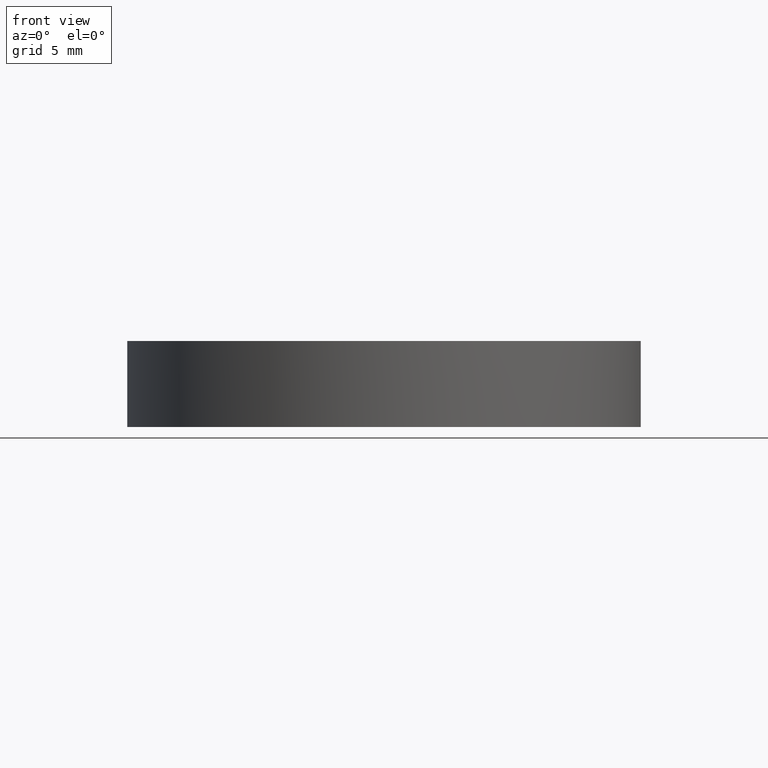
[diagram: clean part render]
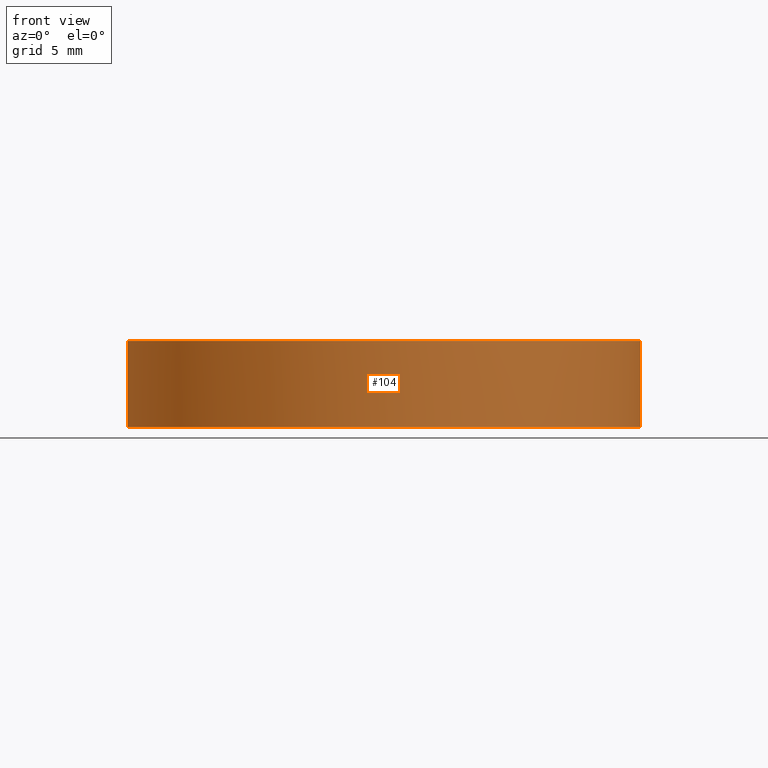
[diagram: same view with one face highlighted and labeled with its STEP entity id]
A machine part, front view. The second image highlights one B-rep face of the part: STEP entity #104.
In plain terms, the highlighted cylindrical surface (partial cylindrical patch) has radius 19.05 mm, axis along (-0, -0, 1).
Its self-contained STEP definition (entity closure, byte-faithful):
#3 = CARTESIAN_POINT ( 'NONE',  ( -4.811603628528664400E-015, -8.881784197001250400E-016, 2.399999999999999500 ) ) ;
#9 = CARTESIAN_POINT ( 'NONE',  ( -4.662936703425659800E-015, -8.881784197001250400E-016, -3.977333338426360900 ) ) ;
#11 = DIRECTION ( 'NONE',  ( -2.331176954593499900E-017, -1.086877198725570000E-033, 1.000000000000000000 ) ) ;
#28 = VERTEX_POINT ( 'NONE', #224 ) ;
#32 = EDGE_CURVE ( 'NONE', #137, #28, #182, .T. ) ;
#33 = AXIS2_PLACEMENT_3D ( 'NONE', #3, #222, #122 ) ;
#40 = DIRECTION ( 'NONE',  ( -2.331176954593499900E-017, -1.086877198725570000E-033, 1.000000000000000000 ) ) ;
#44 = DIRECTION ( 'NONE',  ( 1.000000000000000000, 0.0000000000000000000, 4.553079989440438700E-017 ) ) ;
#51 = AXIS2_PLACEMENT_3D ( 'NONE', #188, #148, #44 ) ;
#54 = CARTESIAN_POINT ( 'NONE',  ( 6.352151363294733000E-015, -19.05000000000000400, -3.977333338426361800 ) ) ;
#55 = EDGE_CURVE ( 'NONE', #180, #127, #140, .T. ) ;
#65 = AXIS2_PLACEMENT_3D ( 'NONE', #210, #95, #134 ) ;
#66 = EDGE_CURVE ( 'NONE', #28, #127, #230, .T. ) ;
#68 = DIRECTION ( 'NONE',  ( -2.331176954593499900E-017, -1.086877198725570000E-033, 1.000000000000000000 ) ) ;
#74 = ORIENTED_EDGE ( 'NONE', *, *, #32, .T. ) ;
#78 = CYLINDRICAL_SURFACE ( 'NONE', #51, 19.05000000000000100 ) ;
#80 = VERTEX_POINT ( 'NONE', #54 ) ;
#84 = ORIENTED_EDGE ( 'NONE', *, *, #66, .T. ) ;
#90 = VECTOR ( 'NONE', #68, 1000.000000000000000 ) ;
#95 = DIRECTION ( 'NONE',  ( -2.331176954593499900E-017, -1.086877198725570000E-033, 1.000000000000000000 ) ) ;
#104 = ADVANCED_FACE ( 'NONE', ( #225 ), #78, .T. ) ;
#107 = ORIENTED_EDGE ( 'NONE', *, *, #211, .T. ) ;
#112 = ORIENTED_EDGE ( 'NONE', *, *, #219, .T. ) ;
#120 = CIRCLE ( 'NONE', #65, 19.05000000000000100 ) ;
#122 = DIRECTION ( 'NONE',  ( 1.000000000000000000, 0.0000000000000000000, 2.276539994720219300E-017 ) ) ;
#127 = VERTEX_POINT ( 'NONE', #130 ) ;
#130 = CARTESIAN_POINT ( 'NONE',  ( -19.05000000000000400, 1.444773732675583000E-015, 2.399999999999999000 ) ) ;
#134 = DIRECTION ( 'NONE',  ( 1.000000000000000000, 0.0000000000000000000, 4.553079989440438700E-017 ) ) ;
#137 = VERTEX_POINT ( 'NONE', #172 ) ;
#140 = LINE ( 'NONE', #143, #90 ) ;
#143 = CARTESIAN_POINT ( 'NONE',  ( -19.05000000000000400, 1.444773732675583000E-015, -3.977333338426360900 ) ) ;
#146 = DIRECTION ( 'NONE',  ( 1.000000000000000000, 0.0000000000000000000, 4.553079989440438700E-017 ) ) ;
#147 = AXIS2_PLACEMENT_3D ( 'NONE', #9, #11, #146 ) ;
#148 = DIRECTION ( 'NONE',  ( -2.331176954593499900E-017, -1.086877198725570000E-033, 1.000000000000000000 ) ) ;
#172 = CARTESIAN_POINT ( 'NONE',  ( 19.04999999999999700, -8.881784197001250400E-016, -3.977333338426360500 ) ) ;
#180 = VERTEX_POINT ( 'NONE', #192 ) ;
#181 = EDGE_LOOP ( 'NONE', ( #213, #112, #107, #74, #84 ) ) ;
#182 = LINE ( 'NONE', #185, #197 ) ;
#185 = CARTESIAN_POINT ( 'NONE',  ( 19.04999999999999700, -8.881784197001250400E-016, -3.977333338426359600 ) ) ;
#188 = CARTESIAN_POINT ( 'NONE',  ( -4.662936703425659800E-015, -8.881784197001250400E-016, -3.977333338426360500 ) ) ;
#192 = CARTESIAN_POINT ( 'NONE',  ( -19.05000000000000400, 1.444773732675583000E-015, -3.977333338426361800 ) ) ;
#197 = VECTOR ( 'NONE', #40, 1000.000000000000000 ) ;
#203 = CIRCLE ( 'NONE', #147, 19.05000000000000100 ) ;
#210 = CARTESIAN_POINT ( 'NONE',  ( -4.662936703425659800E-015, -8.881784197001250400E-016, -3.977333338426360900 ) ) ;
#211 = EDGE_CURVE ( 'NONE', #80, #137, #120, .T. ) ;
#213 = ORIENTED_EDGE ( 'NONE', *, *, #55, .F. ) ;
#219 = EDGE_CURVE ( 'NONE', #180, #80, #203, .T. ) ;
#222 = DIRECTION ( 'NONE',  ( 2.331176954593499900E-017, 1.086877198725570000E-033, -1.000000000000000000 ) ) ;
#224 = CARTESIAN_POINT ( 'NONE',  ( 19.04999999999999700, -8.881784197001250400E-016, 2.399999999999999900 ) ) ;
#225 = FACE_OUTER_BOUND ( 'NONE', #181, .T. ) ;
#230 = CIRCLE ( 'NONE', #33, 19.05000000000000100 ) ;